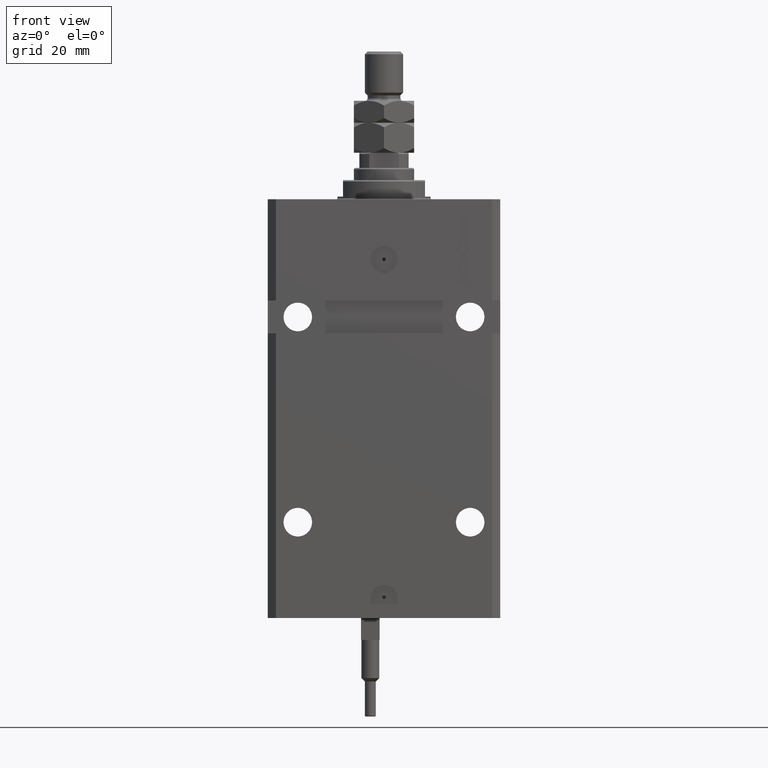
[diagram: clean part render]
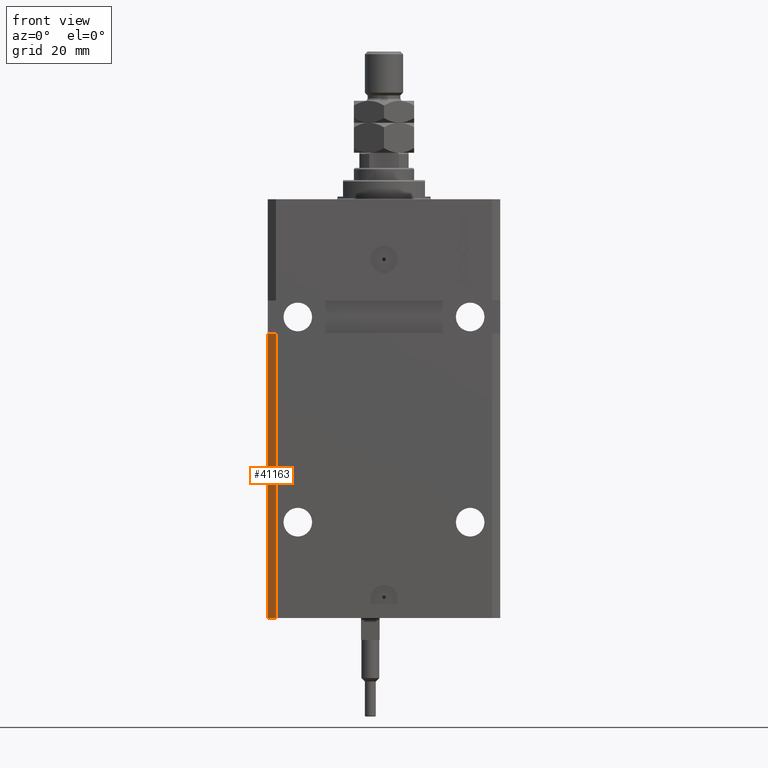
[diagram: same view with one face highlighted and labeled with its STEP entity id]
A machine part, front view. The second image highlights one B-rep face of the part: STEP entity #41163.
In plain terms, the highlighted planar face has unit normal (-0.7071, -0.7071, 0).
Its self-contained STEP definition (entity closure, byte-faithful):
#253 = PLANE ( 'NONE',  #3210 ) ;
#440 = CARTESIAN_POINT ( 'NONE',  ( -42.50000000000000711, -28.49999999999999289, -48.99999999999998579 ) ) ;
#1912 = VERTEX_POINT ( 'NONE', #31024 ) ;
#3210 = AXIS2_PLACEMENT_3D ( 'NONE', #46458, #22734, #19888 ) ;
#4898 = LINE ( 'NONE', #35614, #29797 ) ;
#5664 = VECTOR ( 'NONE', #44115, 1000.000000000000000 ) ;
#7672 = LINE ( 'NONE', #440, #49988 ) ;
#9237 = EDGE_CURVE ( 'NONE', #17022, #50256, #7672, .T. ) ;
#10611 = ORIENTED_EDGE ( 'NONE', *, *, #9237, .F. ) ;
#12911 = CARTESIAN_POINT ( 'NONE',  ( -42.50000000000000000, -28.50000000000000000, -153.0000000000000000 ) ) ;
#13480 = ORIENTED_EDGE ( 'NONE', *, *, #41329, .F. ) ;
#13844 = LINE ( 'NONE', #14346, #26971 ) ;
#14346 = CARTESIAN_POINT ( 'NONE',  ( -42.50000000000000000, -28.50000000000000000, -153.0000000000000000 ) ) ;
#16201 = DIRECTION ( 'NONE',  ( 0.7071067811865471286, -0.7071067811865479058, 1.154479749032186020E-16 ) ) ;
#17022 = VERTEX_POINT ( 'NONE', #21057 ) ;
#17705 = DIRECTION ( 'NONE',  ( 0.7071067811865471286, -0.7071067811865479058, 0.000000000000000000 ) ) ;
#18766 = EDGE_CURVE ( 'NONE', #1912, #50256, #4898, .T. ) ;
#19888 = DIRECTION ( 'NONE',  ( 0.7071067811865471286, -0.7071067811865479058, 0.000000000000000000 ) ) ;
#21057 = CARTESIAN_POINT ( 'NONE',  ( -42.50000000000001421, -28.50000000000000711, -48.99999999999999289 ) ) ;
#22734 = DIRECTION ( 'NONE',  ( -0.7071067811865479058, -0.7071067811865471286, 0.000000000000000000 ) ) ;
#22785 = CARTESIAN_POINT ( 'NONE',  ( -42.50000000000000000, -28.50000000000000000, -153.0000000000000000 ) ) ;
#23461 = VERTEX_POINT ( 'NONE', #22785 ) ;
#25962 = CARTESIAN_POINT ( 'NONE',  ( -39.50000000000000000, -31.50000000000000711, -48.99999999999999289 ) ) ;
#26971 = VECTOR ( 'NONE', #17705, 1000.000000000000000 ) ;
#28126 = DIRECTION ( 'NONE',  ( 0.000000000000000000, 0.000000000000000000, 1.000000000000000000 ) ) ;
#28897 = LINE ( 'NONE', #12911, #5664 ) ;
#29711 = ORIENTED_EDGE ( 'NONE', *, *, #18766, .T. ) ;
#29797 = VECTOR ( 'NONE', #28126, 1000.000000000000000 ) ;
#31024 = CARTESIAN_POINT ( 'NONE',  ( -39.50000000000000711, -31.50000000000000000, -153.0000000000000000 ) ) ;
#35614 = CARTESIAN_POINT ( 'NONE',  ( -39.50000000000000711, -31.50000000000000000, -153.0000000000000000 ) ) ;
#37346 = EDGE_CURVE ( 'NONE', #23461, #1912, #13844, .T. ) ;
#38965 = FACE_OUTER_BOUND ( 'NONE', #43980, .T. ) ;
#41163 = ADVANCED_FACE ( 'NONE', ( #38965 ), #253, .T. ) ;
#41329 = EDGE_CURVE ( 'NONE', #23461, #17022, #28897, .T. ) ;
#43980 = EDGE_LOOP ( 'NONE', ( #10611, #13480, #50186, #29711 ) ) ;
#44115 = DIRECTION ( 'NONE',  ( 0.000000000000000000, 0.000000000000000000, 1.000000000000000000 ) ) ;
#46458 = CARTESIAN_POINT ( 'NONE',  ( -42.50000000000000000, -28.50000000000000000, -153.0000000000000000 ) ) ;
#49988 = VECTOR ( 'NONE', #16201, 1000.000000000000000 ) ;
#50186 = ORIENTED_EDGE ( 'NONE', *, *, #37346, .T. ) ;
#50256 = VERTEX_POINT ( 'NONE', #25962 ) ;